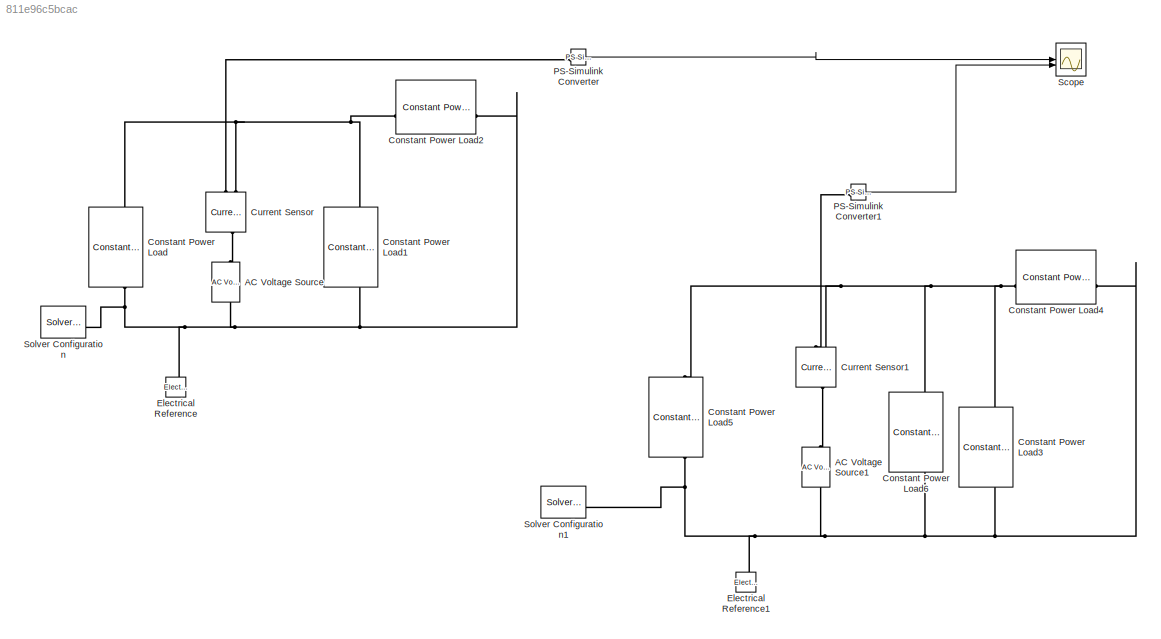
MODEL slx_811e96c5bcac
KIND model
CONFIG AbsTol = auto
CONFIG EnableMultiTasking = off
CONFIG FixedStep = auto
CONFIG MaxStep = auto
CONFIG MinStep = auto
CONFIG RelTol = 1e-3
CONFIG SampleTimeConstraint = Unconstrained
CONFIG SolverName = VariableStepAuto
CONFIG StartTime = 0.0
CONFIG StopTime = 5.0
BLOCK [Reference] AC Voltage Source  REF=fl_lib/Electrical/Electrical Sources/AC Voltage Source
  NameLocation = right
  SourceBlock = fl_lib/Electrical/Electrical Sources/AC Voltage Source
  SourceType = AC Voltage Source
BLOCK [Reference] AC Voltage Source1  REF=fl_lib/Electrical/Electrical Sources/AC Voltage Source
  NameLocation = right
  SourceBlock = fl_lib/Electrical/Electrical Sources/AC Voltage Source
  SourceType = AC Voltage Source
BLOCK [Reference] Constant Power Load  REF=ee_lib/Passive/Constant Power Load
  NameLocation = left
  SourceBlock = ee_lib/Passive/Constant Power Load
  SourceType = Constant Power Load
BLOCK [Reference] Constant Power Load1  REF=ee_lib/Passive/Constant Power Load
  NameLocation = left
  SourceBlock = ee_lib/Passive/Constant Power Load
  SourceType = Constant Power Load
BLOCK [Reference] Constant Power Load2  REF=ee_lib/Passive/Constant Power Load
  SourceBlock = ee_lib/Passive/Constant Power Load
  SourceType = Constant Power Load
BLOCK [Reference] Constant Power Load3  REF=ee_lib/Passive/Constant Power Load
  NameLocation = left
  SourceBlock = ee_lib/Passive/Constant Power Load
  SourceType = Constant Power Load
BLOCK [Reference] Constant Power Load4  REF=ee_lib/Passive/Constant Power Load
  SourceBlock = ee_lib/Passive/Constant Power Load
  SourceType = Constant Power Load
BLOCK [Reference] Constant Power Load5  REF=ee_lib/Passive/Constant Power Load
  NameLocation = left
  SourceBlock = ee_lib/Passive/Constant Power Load
  SourceType = Constant Power Load
BLOCK [Reference] Constant Power Load6  REF=ee_lib/Passive/Constant Power Load
  NameLocation = left
  SourceBlock = ee_lib/Passive/Constant Power Load
  SourceType = Constant Power Load
BLOCK [Reference] Current Sensor  REF=fl_lib/Electrical/Electrical Sensors/Current Sensor
  NameLocation = right
  SourceBlock = fl_lib/Electrical/Electrical Sensors/Current Sensor
  SourceType = Current Sensor
BLOCK [Reference] Current Sensor1  REF=fl_lib/Electrical/Electrical Sensors/Current Sensor
  NameLocation = right
  SourceBlock = fl_lib/Electrical/Electrical Sensors/Current Sensor
  SourceType = Current Sensor
BLOCK [Reference] Electrical Reference  REF=fl_lib/Electrical/Electrical Elements/Electrical Reference
  NameLocation = right
  SourceBlock = fl_lib/Electrical/Electrical Elements/Electrical Reference
  SourceType = Electrical Reference
BLOCK [Reference] Electrical Reference1  REF=fl_lib/Electrical/Electrical Elements/Electrical Reference
  NameLocation = right
  SourceBlock = fl_lib/Electrical/Electrical Elements/Electrical Reference
  SourceType = Electrical Reference
BLOCK [Reference] PS-Simulink Converter  REF=nesl_utility/PS-Simulink
Converter
  SourceBlock = nesl_utility/PS-Simulink\nConverter
  SourceType = PS-Simulink\nConverter
BLOCK [Reference] PS-Simulink Converter1  REF=nesl_utility/PS-Simulink
Converter
  SourceBlock = nesl_utility/PS-Simulink\nConverter
  SourceType = PS-Simulink\nConverter
BLOCK [Scope] Scope
  Floating = off
  NumInputPorts = 2
  ScopeSpecificationString = Simulink.scopes.TimeScopeBlockCfg('CurrentConfiguration', extmgr.ConfigurationSet(extmgr.Configuration('Core','General UI',true),extmgr.Configuration('Core','Source UI',true),extmgr.Configuration('Sources','WiredSimulink',true),extmgr.Configuration('Visuals','Time Domain',true,'SerializedDisplays',{struct('MinYLimReal','-523.94888','MaxYLimReal','543.39616','YLabelReal','','MinYLimMag',' 0.00000',...<+1553ch>
BLOCK [Reference] Solver Configuration  REF=nesl_utility/Solver
Configuration
  SourceBlock = nesl_utility/Solver\nConfiguration
  SourceType = Solver\nConfiguration
BLOCK [Reference] Solver Configuration1  REF=nesl_utility/Solver
Configuration
  SourceBlock = nesl_utility/Solver\nConfiguration
  SourceType = Solver\nConfiguration
LINE PS-Simulink Converter1:1 -> Scope:2
LINE PS-Simulink Converter:1 -> Scope:1
PLINE AC Voltage Source1:LConn1 -- Current Sensor1:LConn1
PNET net1: AC Voltage Source1:RConn1 -- Constant Power Load3:RConn1 -- Constant Power Load4:RConn1 -- Constant Power Load5:RConn1 -- Constant Power Load6:RConn1 -- Electrical Reference1:LConn1 -- Solver Configuration1:RConn1
PLINE AC Voltage Source:LConn1 -- Current Sensor:LConn1
PNET net2: AC Voltage Source:RConn1 -- Constant Power Load1:RConn1 -- Constant Power Load2:RConn1 -- Constant Power Load:RConn1 -- Electrical Reference:LConn1 -- Solver Configuration:RConn1
PNET net3: Constant Power Load1:LConn1 -- Constant Power Load2:LConn1 -- Constant Power Load:LConn1 -- Current Sensor:RConn2
PNET net4: Constant Power Load3:LConn1 -- Constant Power Load4:LConn1 -- Constant Power Load5:LConn1 -- Constant Power Load6:LConn1 -- Current Sensor1:RConn2
PLINE Current Sensor1:RConn1 -- PS-Simulink Converter1:LConn1
PLINE Current Sensor:RConn1 -- PS-Simulink Converter:LConn1
note: PNET lines group multi-terminal physical nets as a canonical sorted terminal list (undirected conserving connections); 2-terminal nets keep the pairwise PLINE form
